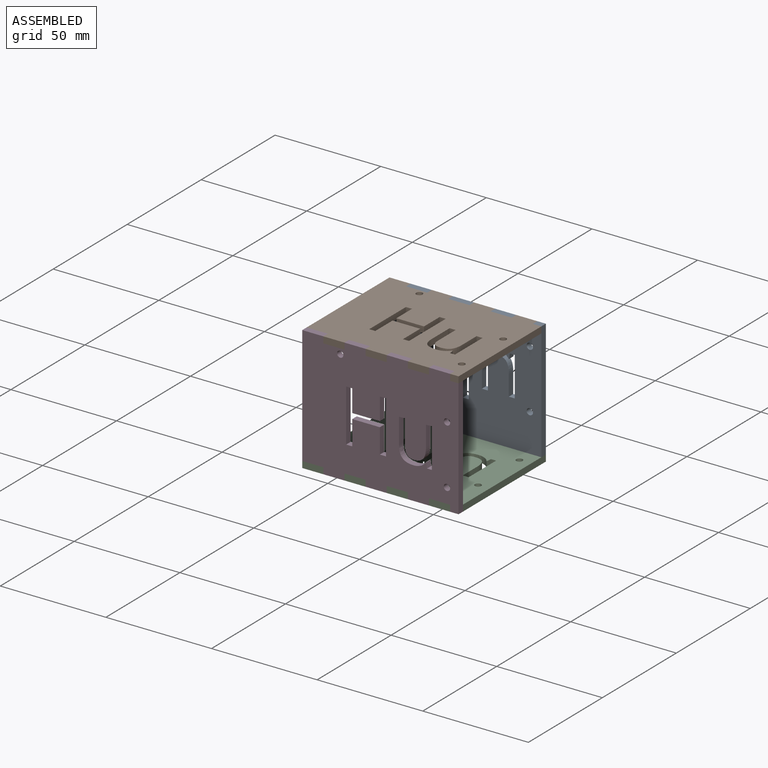
[diagram: assembled view]
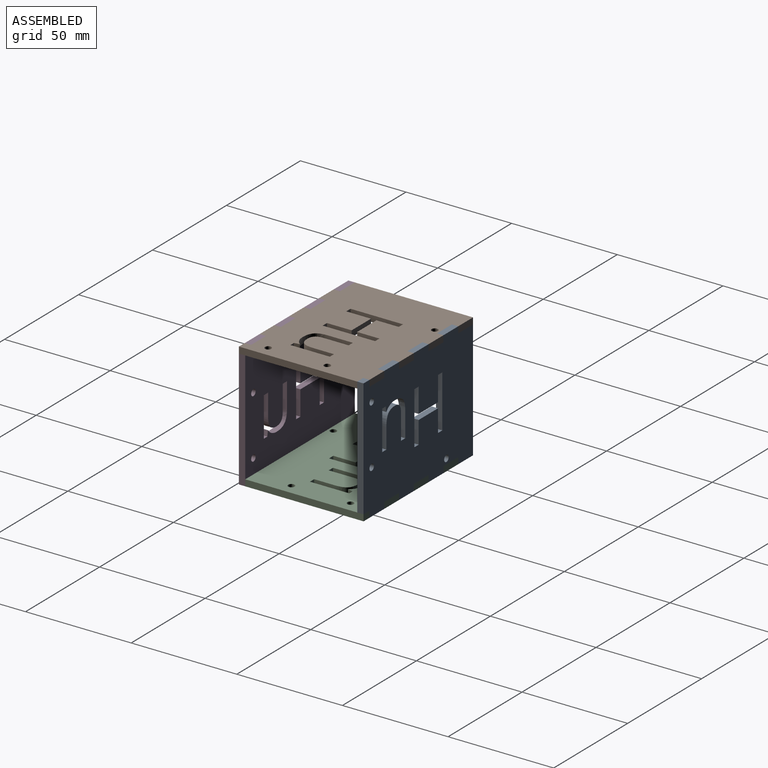
[diagram: assembled view, second angle]
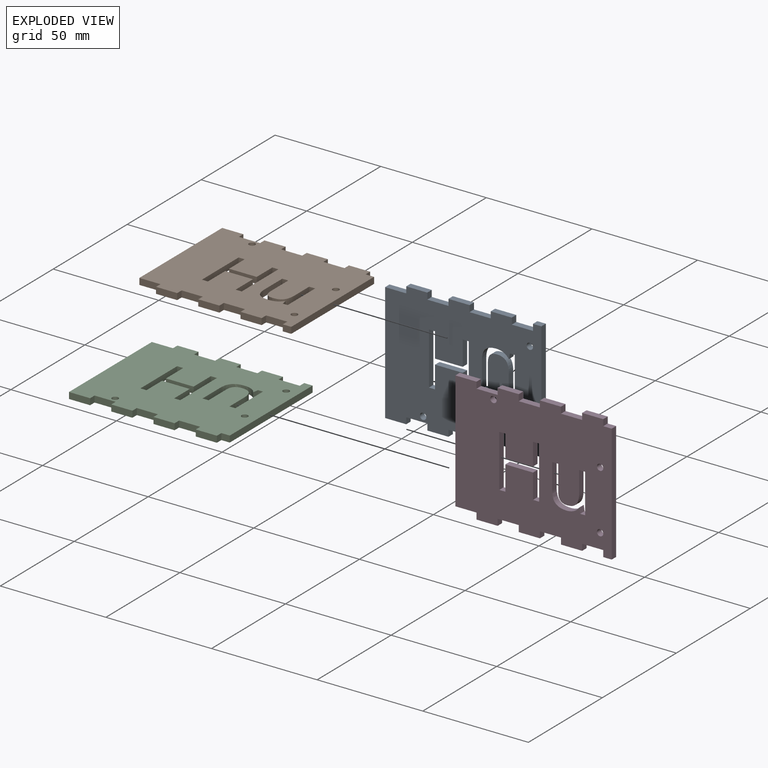
[diagram: exploded view]
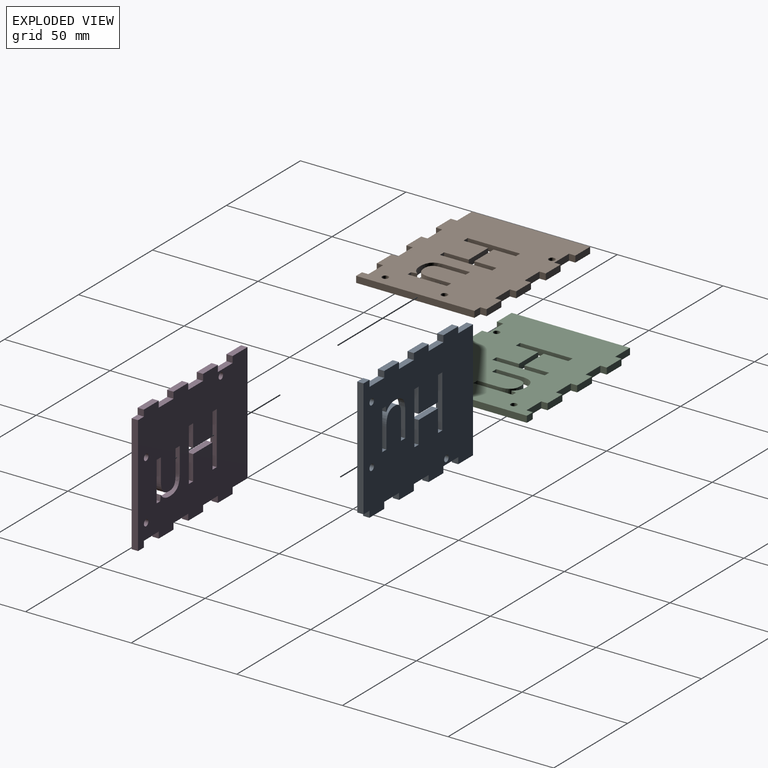
[diagram: exploded view, second angle]
ASSEMBLY  parts=4 mates=3
PART A: 66 faces, bbox 74x59x3 mm
  f0: plane 10x3mm, normal (0,-1,0), area 30mm2, adj f1,f34,f35,f36
  f1: plane 3x3mm, normal (-1,0,0), area 9mm2, adj f0,f2,f35,f36
  f2: plane 10x3mm, normal (0,-1,0), area 30mm2, adj f1,f3,f35,f36
  f3: plane 3x3mm, normal (1,0,0), area 9mm2, adj f2,f4,f35,f36
  f4: plane 10x3mm, normal (0,-1,0), area 30mm2, adj f3,f5,f35,f36
  f5: plane 3x3mm, normal (-1,0,0), area 9mm2, adj f4,f6,f35,f36
  f6: plane 10x3mm, normal (0,-1,0), area 30mm2, adj f5,f7,f35,f36
  f7: plane 3x3mm, normal (1,0,0), area 9mm2, adj f6,f8,f35,f36
  f8: plane 10x3mm, normal (0,-1,0), area 30mm2, adj f7,f9,f35,f36
  f9: plane 3x3mm, normal (-1,0,0), area 9mm2, adj f8,f10,f35,f36
  f10: plane 10x3mm, normal (0,-1,0), area 30mm2, adj f9,f11,f35,f36
  f11: plane 3x3mm, normal (1,0,0), area 9mm2, adj f10,f12,f35,f36
  f12: plane 10x3mm, normal (0,-1,0), area 30mm2, adj f11,f13,f35,f36
  f13: plane 3x3mm, normal (-1,0,0), area 9mm2, adj f12,f14,f35,f36
  f14: plane 4x3mm, normal (0,-1,0), area 12mm2, adj f13,f15,f35,f36
  f15: plane 56x3mm, normal (1,0,0), area 168mm2, adj f14,f16,f35,f36
  f16: plane 4x3mm, normal (0,1,0), area 12mm2, adj f15,f17,f35,f36
  f17: plane 3x3mm, normal (1,0,0), area 9mm2, adj f16,f18,f35,f36
  f18: plane 10x3mm, normal (0,1,0), area 30mm2, adj f17,f19,f35,f36
  f19: plane 3x3mm, normal (-1,0,0), area 9mm2, adj f18,f20,f35,f36
  f20: plane 10x3mm, normal (0,1,0), area 30mm2, adj f19,f21,f35,f36
  f21: plane 3x3mm, normal (1,0,0), area 9mm2, adj f20,f22,f35,f36
  f22: plane 10x3mm, normal (0,1,0), area 30mm2, adj f21,f23,f35,f36
  f23: plane 3x3mm, normal (-1,0,0), area 9mm2, adj f22,f24,f35,f36
  f24: plane 10x3mm, normal (0,1,0), area 30mm2, adj f23,f25,f35,f36
  f25: plane 3x3mm, normal (1,0,0), area 9mm2, adj f24,f26,f35,f36
  f26: plane 10x3mm, normal (0,1,0), area 30mm2, adj f25,f27,f35,f36
  f27: plane 3x3mm, normal (-1,0,0), area 9mm2, adj f26,f28,f35,f36
  f28: plane 10x3mm, normal (0,1,0), area 30mm2, adj f27,f29,f35,f36
  f29: plane 3x3mm, normal (1,0,0), area 9mm2, adj f28,f30,f35,f36
  f30: plane 10x3mm, normal (0,1,0), area 30mm2, adj f29,f34,f35,f36
  f31: cylinder r=1.5mm len=3mm, axis (0,0,-1), area 28.3mm2, adj f35,f36
  f32: cylinder r=1.5mm len=3mm, axis (0,0,-1), area 28.3mm2, adj f35,f36
  f33: cylinder r=1.5mm len=3mm, axis (0,0,-1), area 28.3mm2, adj f35,f36
  f34: plane 56x3mm, normal (-1,0,0), area 168mm2, adj f0,f30,f35,f36
  f35: plane 74x59mm, normal (0,0,1), area 3819.5mm2, adj f0,f1,f2,f3,f4,f5,f6,f7
  f36: plane 74x59mm, normal (0,0,-1), area 3819.5mm2, adj f0,f1,f2,f3,f4,f5,f6,f7
  f37: plane 12.08x3mm, normal (-1,0,0), area 36.2mm2, adj f35,f36,f38,f53
  f38: plane 3x2.85mm, normal (0,-1,0), area 8.6mm2, adj f35,f36,f37,f39
  f39: plane 12.18x3mm, normal (1,0,0), area 36.5mm2, adj f35,f36,f38,f40
  f40: extruded ~5.16x3mm, area 16.7mm2, adj f35,f36,f39,f41
  f41: extruded ~5.09x3mm, area 16.4mm2, adj f35,f36,f40,f42
  f42: extruded ~3.51x3mm, area 10.8mm2, adj f35,f36,f41,f43
  f43: extruded ~3x2.4mm, area 9.7mm2, adj f35,f36,f42,f44
  f44: plane 3x0.15mm, normal (0,1,0), area 0.5mm2, adj f35,f36,f43,f45
  f45: plane 3x2.5mm, normal (0.99,0.16,0), area 7.6mm2, adj f35,f36,f44,f46
  f46: plane 3x2.33mm, normal (0,1,0), area 7mm2, adj f35,f36,f45,f47
  f47: plane 18.62x3mm, normal (-1,0,0), area 55.8mm2, adj f35,f36,f46,f48
  f48: plane 3x2.82mm, normal (0,-1,0), area 8.5mm2, adj f35,f36,f47,f49
  f49: plane 9.78x3mm, normal (1,0,0), area 29.4mm2, adj f35,f36,f48,f50
  f50: extruded ~5.22x3mm, area 16.5mm2, adj f35,f36,f49,f51
  f51: extruded ~4.27x3mm, area 14.1mm2, adj f35,f36,f50,f52
  f52: extruded ~3.24x3mm, area 10.6mm2, adj f35,f36,f51,f53
  f53: extruded ~3.4x3mm, area 10.9mm2, adj f35,f36,f37,f52
  f54: plane 3x2.89mm, normal (0,1,0), area 8.7mm2, adj f35,f36,f55,f65
  f55: plane 24.83x3mm, normal (-1,0,0), area 74.5mm2, adj f35,f36,f54,f56
  f56: plane 3x2.89mm, normal (0,-1,0), area 8.7mm2, adj f35,f36,f55,f57
  f57: plane 10.57x3mm, normal (1,0,0), area 31.7mm2, adj f35,f36,f56,f58
  f58: plane 13.08x3mm, normal (0,-1,0), area 39.2mm2, adj f35,f36,f57,f59
  f59: plane 10.57x3mm, normal (-1,0,0), area 31.7mm2, adj f35,f36,f58,f60
  f60: plane 3x2.89mm, normal (0,-1,0), area 8.7mm2, adj f35,f36,f59,f61
  f61: plane 24.83x3mm, normal (1,0,0), area 74.5mm2, adj f35,f36,f60,f62
  f62: plane 3x2.89mm, normal (0,1,0), area 8.7mm2, adj f35,f36,f61,f63
  f63: plane 11.69x3mm, normal (-1,0,0), area 35.1mm2, adj f35,f36,f62,f64
  f64: plane 13.08x3mm, normal (0,1,0), area 39.2mm2, adj f35,f36,f63,f65
  f65: plane 11.69x3mm, normal (1,0,0), area 35.1mm2, adj f35,f36,f54,f64
PART B: same geometry as A
PART C: same geometry as A
PART D: same geometry as A
PLACE A rot(axis=(-1,0,0),90deg) t=(-177.11,158.91,-116.11)mm
PLACE B rot(axis=(-0.14,0.96,0.26),0deg) t=(-177.11,132.41,-89.61)mm
PLACE C rot(axis=(1,0,0),180deg) t=(-177.11,132.41,-142.61)mm
PLACE D rot(axis=(1,0,0),90deg) t=(-177.11,105.91,-116.11)mm
MATE fastened D.f13 <-> C.f17  axis (-1,0,0) through (-144.11,104.41,-144.11)mm
MATE fastened A.f17 <-> C.f13  axis (1,0,0) through (-144.11,160.41,-144.11)mm
MATE fastened B.f17 <-> A.f13  axis (1,0,0) through (-144.11,160.41,-88.11)mm
